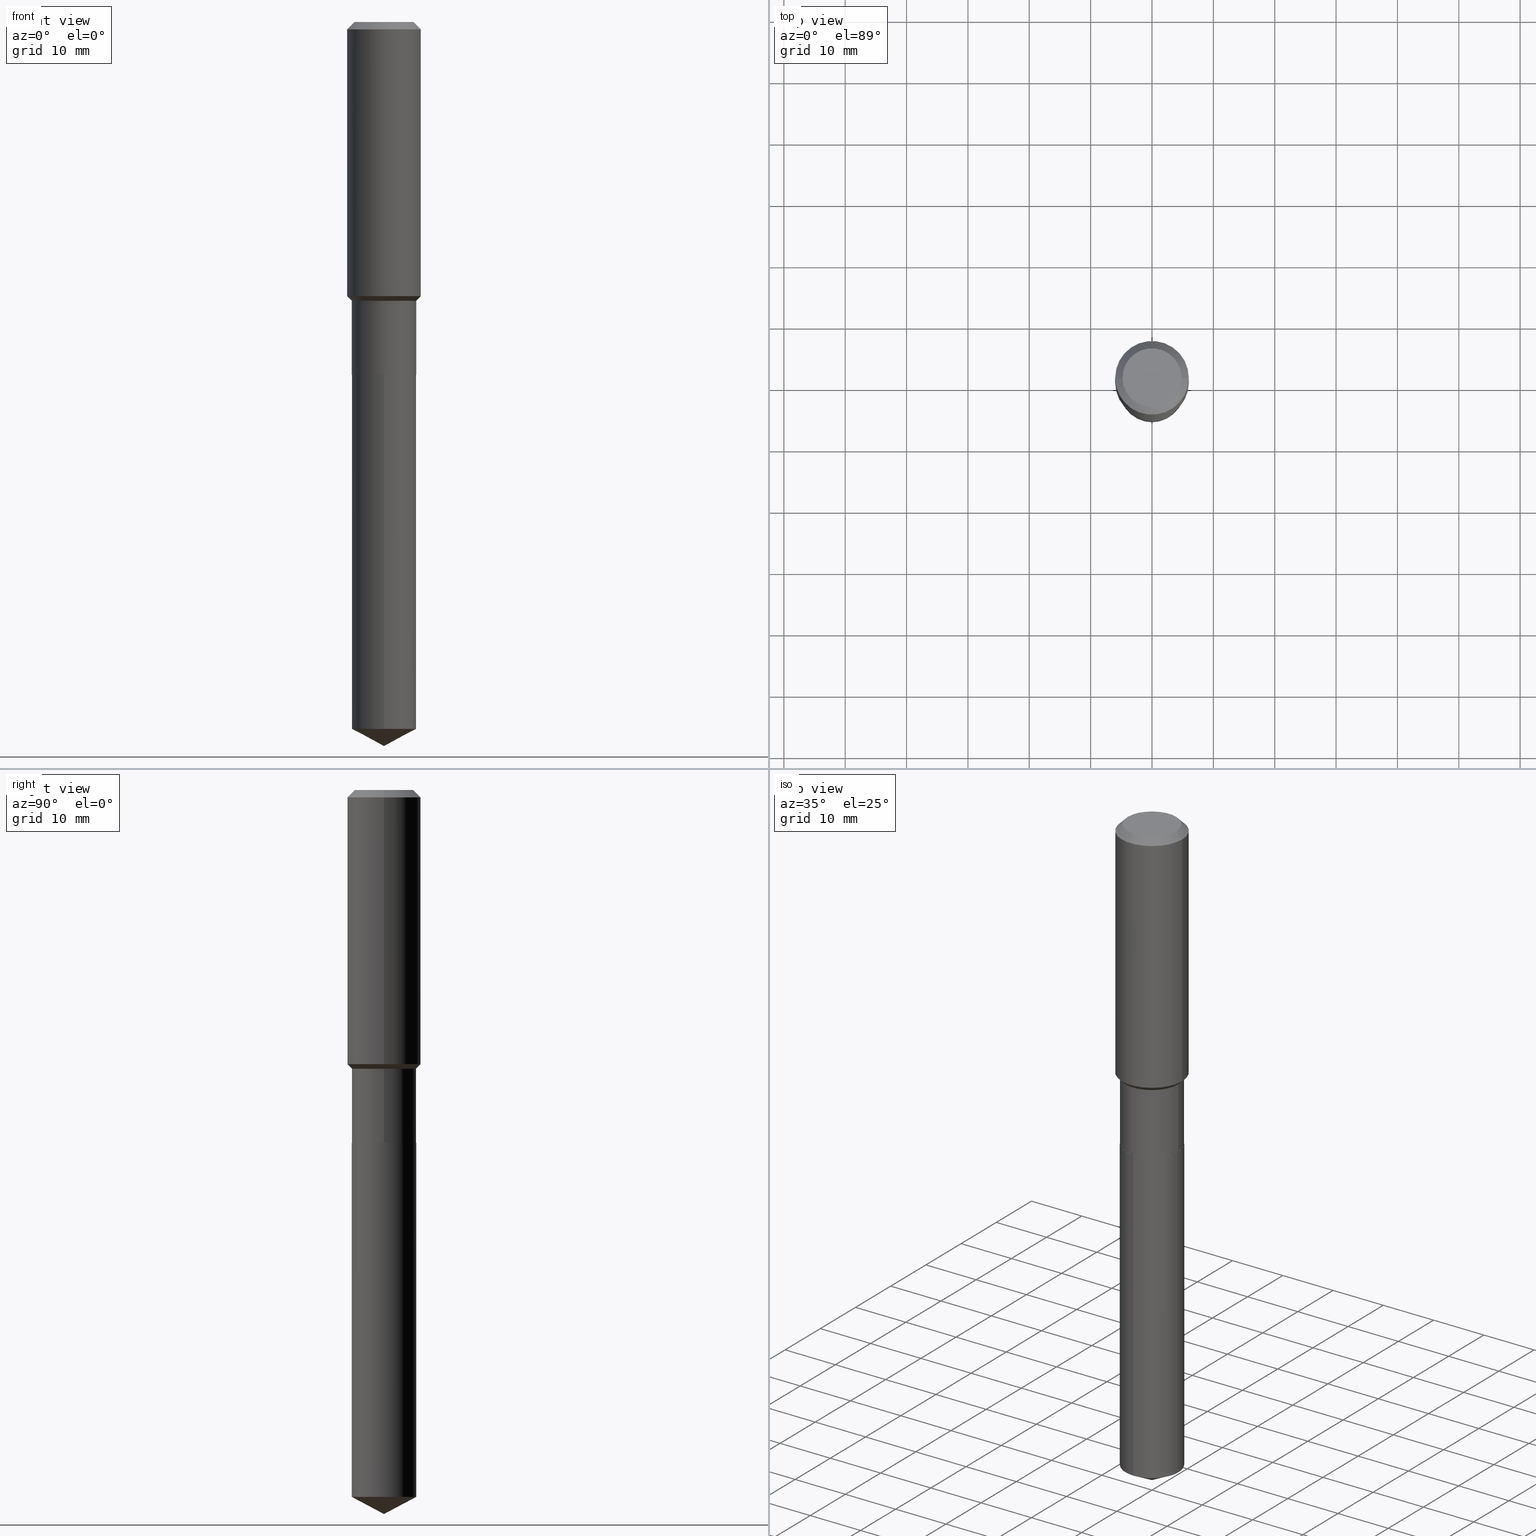
[diagram: canonical four-view strip — front | top / right | iso, engineering-drawing reading convention]
A machine part, canonical four-view strip (front | top / right | iso — engineering-drawing reading convention). The complete STEP part file that produces these views, byte-faithful:
ISO-10303-21;
HEADER;
FILE_DESCRIPTION (( 'STEP AP203' ),
    '1' );
FILE_NAME ('65075.STEP',
    '2024-04-24T20:27:13',
    ( '' ),
    ( '' ),
    'SwSTEP 2.0',
    'SolidWorks 2023',
    '' );
FILE_SCHEMA (( 'CONFIG_CONTROL_DESIGN' ));
ENDSEC;

DATA;
#1 = ORIENTED_EDGE ( 'NONE', *, *, #149, .T. ) ;
#2 = EDGE_CURVE ( 'NONE', #283, #4, #235, .T. ) ;
#3 = DIRECTION ( 'NONE',  ( -6.982962677686265133E-15, -1.000000000000000000, 2.643297526525653668E-15 ) ) ;
#4 = VERTEX_POINT ( 'NONE', #154 ) ;
#5 = CIRCLE ( 'NONE', #100, 0.2067000000000000226 ) ;
#6 = PRODUCT_DEFINITION_SHAPE ( 'NONE', 'NONE',  #94 ) ;
#7 = DIRECTION ( 'NONE',  ( 1.000000000000000000, -6.982962677686266711E-15, 0.000000000000000000 ) ) ;
#8 = CARTESIAN_POINT ( 'NONE',  ( 4.373476412981496355E-29, -6.244165226387079301E-15, -1.788399999999999324 ) ) ;
#9 = DIRECTION ( 'NONE',  ( 1.000000000000000000, -6.982962677686264344E-15, 0.000000000000000000 ) ) ;
#10 = ORIENTED_EDGE ( 'NONE', *, *, #343, .F. ) ;
#11 = CIRCLE ( 'NONE', #295, 0.2362000000000002153 ) ;
#12 = DIRECTION ( 'NONE',  ( -1.000000000000000000, 6.982962677686266711E-15, 0.000000000000000000 ) ) ;
#13 = LINE ( 'NONE', #471, #84 ) ;
#14 = CARTESIAN_POINT ( 'NONE',  ( 0.2361999999999999933, -1.814313362916447440E-15, -0.04724000000000028177 ) ) ;
#15 = LINE ( 'NONE', #355, #316 ) ;
#16 = DIRECTION ( 'NONE',  ( -6.982962677686265133E-15, -1.000000000000000000, 2.643297526525653668E-15 ) ) ;
#17 = AXIS2_PLACEMENT_3D ( 'NONE', #140, #450, #406 ) ;
#18 = FACE_OUTER_BOUND ( 'NONE', #248, .T. ) ;
#19 = DIRECTION ( 'NONE',  ( 1.000000000000000000, -6.982962677686266711E-15, 4.876176775795935793E-29 ) ) ;
#20 = CARTESIAN_POINT ( 'NONE',  ( 1.155239464041865506E-30, -1.649375784469511859E-16, -0.04724000000000028177 ) ) ;
#21 = ORIENTED_EDGE ( 'NONE', *, *, #319, .F. ) ;
#22 = CARTESIAN_POINT ( 'NONE',  ( 1.468691834816237291E-15, 0.2066999999999841187, -4.535795660475574032 ) ) ;
#23 = ORIENTED_EDGE ( 'NONE', *, *, #383, .F. ) ;
#24 = CONICAL_SURFACE ( 'NONE', #366, 0.2361999999999999933, 0.7853981633974452814 ) ;
#25 = AXIS2_PLACEMENT_3D ( 'NONE', #367, #212, #375 ) ;
#26 = DIRECTION ( 'NONE',  ( -2.445496147551325401E-29, 3.491442184450589334E-15, 1.000000000000000000 ) ) ;
#27 = EDGE_LOOP ( 'NONE', ( #209, #400, #486, #407 ) ) ;
#28 = EDGE_LOOP ( 'NONE', ( #123, #368 ) ) ;
#29 = LINE ( 'NONE', #329, #152 ) ;
#30 = PERSON_AND_ORGANIZATION ( #446, #237 ) ;
#31 = PERSON_AND_ORGANIZATION ( #446, #237 ) ;
#32 = ORIENTED_EDGE ( 'NONE', *, *, #480, .T. ) ;
#33 = CIRCLE ( 'NONE', #284, 0.2067000000000000226 ) ;
#34 = APPROVAL_PERSON_ORGANIZATION ( #67, #466, #441 ) ;
#35 = CIRCLE ( 'NONE', #182, 0.2062000000000000222 ) ;
#36 = ADVANCED_FACE ( 'NONE', ( #163 ), #132, .T. ) ;
#37 =( NAMED_UNIT ( * ) PLANE_ANGLE_UNIT ( ) SI_UNIT ( $, .RADIAN. ) );
#38 = PERSON_AND_ORGANIZATION_ROLE ( 'design_supplier' ) ;
#39 = CIRCLE ( 'NONE', #146, 0.2361999999999999933 ) ;
#40 = EDGE_CURVE ( 'NONE', #103, #72, #191, .T. ) ;
#41 = DIRECTION ( 'NONE',  ( -2.445468806185136877E-29, 3.491481338843145188E-15, 1.000000000000000000 ) ) ;
#42 = CARTESIAN_POINT ( 'NONE',  ( 4.373476412981496355E-29, -6.244165226387079301E-15, -1.788399999999999324 ) ) ;
#43 = AXIS2_PLACEMENT_3D ( 'NONE', #482, #314, #432 ) ;
#44 = EDGE_LOOP ( 'NONE', ( #106, #341, #242, #457 ) ) ;
#45 = AXIS2_PLACEMENT_3D ( 'NONE', #190, #334, #9 ) ;
#46 = DIRECTION ( 'NONE',  ( -2.445468806185136877E-29, 3.491481338843145188E-15, 1.000000000000000000 ) ) ;
#47 = DIRECTION ( 'NONE',  ( 1.000000000000000000, -6.982962677686268288E-15, 0.000000000000000000 ) ) ;
#48 = VERTEX_POINT ( 'NONE', #181 ) ;
#49 = DIRECTION ( 'NONE',  ( 0.7071067811866199593, -2.468850131083015945E-15, 0.7071067811864750752 ) ) ;
#50 = CARTESIAN_POINT ( 'NONE',  ( 0.1889600000000000168, -1.540873453589747738E-15, 3.855188123725863225E-18 ) ) ;
#51 = FACE_OUTER_BOUND ( 'NONE', #490, .T. ) ;
#52 = CARTESIAN_POINT ( 'NONE',  ( -0.2062000000000000222, -6.436227106561674597E-15, -2.263799999999999812 ) ) ;
#53 = AXIS2_PLACEMENT_3D ( 'NONE', #430, #160, #315 ) ;
#54 = ORIENTED_EDGE ( 'NONE', *, *, #2, .F. ) ;
#55 = AXIS2_PLACEMENT_3D ( 'NONE', #387, #151, #267 ) ;
#56 = DIRECTION ( 'NONE',  ( -2.445496147551325401E-29, 3.491442184450589334E-15, 1.000000000000000000 ) ) ;
#57 = VERTEX_POINT ( 'NONE', #50 ) ;
#58 = CARTESIAN_POINT ( 'NONE',  ( 5.534829549038819808E-29, -7.902269714203691232E-15, -2.263300000000000090 ) ) ;
#59 = ORIENTED_EDGE ( 'NONE', *, *, #480, .F. ) ;
#60 = ADVANCED_FACE ( 'NONE', ( #122 ), #312, .F. ) ;
#61 = ADVANCED_FACE ( 'NONE', ( #437 ), #467, .T. ) ;
#62 = ADVANCED_FACE ( 'NONE', ( #229 ), #415, .T. ) ;
#63 = FACE_OUTER_BOUND ( 'NONE', #476, .T. ) ;
#64 = EDGE_LOOP ( 'NONE', ( #374, #76 ) ) ;
#65 = AXIS2_PLACEMENT_3D ( 'NONE', #167, #185, #353 ) ;
#66 = PERSON_AND_ORGANIZATION_ROLE ( 'creator' ) ;
#67 = PERSON_AND_ORGANIZATION ( #446, #237 ) ;
#68 = CARTESIAN_POINT ( 'NONE',  ( -9.427742298522546243E-47, 1.346031739168365344E-32, 3.855188123715862256E-18 ) ) ;
#69 = EDGE_LOOP ( 'NONE', ( #96, #125, #448, #102 ) ) ;
#70 = ADVANCED_FACE ( 'NONE', ( #361 ), #92, .T. ) ;
#71 = APPROVAL_ROLE ( '' ) ;
#72 = VERTEX_POINT ( 'NONE', #397 ) ;
#73 = PERSON_AND_ORGANIZATION ( #446, #237 ) ;
#74 = PERSON_AND_ORGANIZATION ( #446, #237 ) ;
#75 = CIRCLE ( 'NONE', #256, 0.2361999999999999933 ) ;
#76 = ORIENTED_EDGE ( 'NONE', *, *, #311, .F. ) ;
#77 = LOCAL_TIME ( 16, 27, 13.00000000000000000, #204 ) ;
#78 = APPLICATION_CONTEXT ( 'configuration controlled 3d designs of mechanical parts and assemblies' ) ;
#79 = ORIENTED_EDGE ( 'NONE', *, *, #321, .F. ) ;
#80 = ADVANCED_FACE ( 'NONE', ( #269 ), #279, .T. ) ;
#81 = DIMENSIONAL_EXPONENTS ( 1.000000000000000000, 0.000000000000000000, 0.000000000000000000, 0.000000000000000000, 0.000000000000000000, 0.000000000000000000, 0.000000000000000000 ) ;
#82 = DIRECTION ( 'NONE',  ( 1.000000000000000000, -6.982962677686264344E-15, 0.000000000000000000 ) ) ;
#83 = AXIS2_PLACEMENT_3D ( 'NONE', #189, #194, #472 ) ;
#84 = VECTOR ( 'NONE', #278, 39.37007874015748143 ) ;
#85 = EDGE_CURVE ( 'NONE', #187, #97, #35, .T. ) ;
#86 = VERTEX_POINT ( 'NONE', #282 ) ;
#87 = DIRECTION ( 'NONE',  ( -2.445496147551325401E-29, 3.491442184450589334E-15, 1.000000000000000000 ) ) ;
#88 = CARTESIAN_POINT ( 'NONE',  ( 1.136104253817811671E-28, -1.622019295630210333E-14, -4.645699999999999719 ) ) ;
#89 = DIRECTION ( 'NONE',  ( 2.445468806185136597E-29, -3.491481338843145583E-15, -1.000000000000000000 ) ) ;
#90 = AXIS2_PLACEMENT_3D ( 'NONE', #8, #302, #82 ) ;
#91 = DIRECTION ( 'NONE',  ( 1.000000000000000000, -6.982962677686268288E-15, 0.000000000000000000 ) ) ;
#92 = CYLINDRICAL_SURFACE ( 'NONE', #119, 0.2066999999999999671 ) ;
#93 = LINE ( 'NONE', #369, #344 ) ;
#94 = PRODUCT_DEFINITION ( 'UNKNOWN', '', #214, #120 ) ;
#95 = DIRECTION ( 'NONE',  ( -2.445468806185136597E-29, 3.491481338843145583E-15, 1.000000000000000000 ) ) ;
#96 = ORIENTED_EDGE ( 'NONE', *, *, #434, .T. ) ;
#97 = VERTEX_POINT ( 'NONE', #52 ) ;
#98 = AXIS2_PLACEMENT_3D ( 'NONE', #201, #131, #485 ) ;
#99 = ORIENTED_EDGE ( 'NONE', *, *, #222, .T. ) ;
#100 = AXIS2_PLACEMENT_3D ( 'NONE', #249, #198, #299 ) ;
#101 = DIRECTION ( 'NONE',  ( -1.000000000000000000, 6.982962677686266711E-15, 0.000000000000000000 ) ) ;
#102 = ORIENTED_EDGE ( 'NONE', *, *, #489, .F. ) ;
#103 = VERTEX_POINT ( 'NONE', #322 ) ;
#104 = DIRECTION ( 'NONE',  ( -2.445468806185136877E-29, 3.491481338843145188E-15, 1.000000000000000000 ) ) ;
#105 = MANIFOLD_SOLID_BREP ( 'Body-Move/Copy2[2]', #425 ) ;
#106 = ORIENTED_EDGE ( 'NONE', *, *, #85, .T. ) ;
#107 = PERSON_AND_ORGANIZATION ( #446, #237 ) ;
#108 = PERSON_AND_ORGANIZATION_ROLE ( 'design_owner' ) ;
#109 = LINE ( 'NONE', #244, #473 ) ;
#110 = DIRECTION ( 'NONE',  ( -6.982962677686265133E-15, -1.000000000000000000, 3.541896320645539569E-15 ) ) ;
#111 = ORIENTED_EDGE ( 'NONE', *, *, #222, .F. ) ;
#112 = AXIS2_PLACEMENT_3D ( 'NONE', #129, #155, #281 ) ;
#113 = ORIENTED_EDGE ( 'NONE', *, *, #343, .T. ) ;
#114 = DIRECTION ( 'NONE',  ( 1.000000000000000000, -6.982962677686266711E-15, 0.000000000000000000 ) ) ;
#115 = CONICAL_SURFACE ( 'NONE', #483, 74.04434902938398011, 1.082104136236488934 ) ;
#116 = ADVANCED_FACE ( 'NONE', ( #428 ), #174, .T. ) ;
#117 = MECHANICAL_CONTEXT ( 'NONE', #78, 'mechanical' ) ;
#118 = ADVANCED_FACE ( 'NONE', ( #288 ), #115, .T. ) ;
#119 = AXIS2_PLACEMENT_3D ( 'NONE', #391, #234, #19 ) ;
#120 = DESIGN_CONTEXT ( 'detailed design', #162, 'design' ) ;
#121 = AXIS2_PLACEMENT_3D ( 'NONE', #318, #277, #91 ) ;
#122 = FACE_OUTER_BOUND ( 'NONE', #64, .T. ) ;
#123 = ORIENTED_EDGE ( 'NONE', *, *, #383, .T. ) ;
#124 = DIRECTION ( 'NONE',  ( 0.7071067811865453523, -7.319954787623248157E-15, -0.7071067811865496822 ) ) ;
#125 = ORIENTED_EDGE ( 'NONE', *, *, #364, .T. ) ;
#126 = LINE ( 'NONE', #232, #325 ) ;
#127 = APPROVAL ( #330, 'UNSPECIFIED' ) ;
#128 = CARTESIAN_POINT ( 'NONE',  ( 1.155239464041865506E-30, -1.649375784469511859E-16, -0.04724000000000028177 ) ) ;
#129 = CARTESIAN_POINT ( 'NONE',  ( 5.536052283441911489E-29, -7.904015454873111947E-15, -2.263799999999999812 ) ) ;
#130 = DIRECTION ( 'NONE',  ( 1.000000000000000000, -6.982962677686268288E-15, 0.000000000000000000 ) ) ;
#131 = DIRECTION ( 'NONE',  ( -2.445496147551325401E-29, 3.491442184450589334E-15, 1.000000000000000000 ) ) ;
#132 = CONICAL_SURFACE ( 'NONE', #121, 0.2062000000000000222, 0.7853981633975507526 ) ;
#133 = ORIENTED_EDGE ( 'NONE', *, *, #40, .T. ) ;
#134 = LOCAL_TIME ( 16, 27, 13.00000000000000000, #303 ) ;
#135 = APPROVAL_STATUS ( 'not_yet_approved' ) ;
#136 = DIRECTION ( 'NONE',  ( -1.000000000000000000, 6.982962677686265922E-15, -4.876176775795935793E-29 ) ) ;
#137 = ORIENTED_EDGE ( 'NONE', *, *, #434, .F. ) ;
#138 = DATE_AND_TIME ( #347, #134 ) ;
#139 = AXIS2_PLACEMENT_3D ( 'NONE', #58, #331, #456 ) ;
#140 = CARTESIAN_POINT ( 'NONE',  ( 5.536052283441911489E-29, -7.904015454873111947E-15, -2.263799999999999812 ) ) ;
#141 = PRODUCT_RELATED_PRODUCT_CATEGORY ( 'detail', '', ( #219 ) ) ;
#142 = ORIENTED_EDGE ( 'NONE', *, *, #453, .F. ) ;
#143 = EDGE_CURVE ( 'NONE', #481, #272, #308, .T. ) ;
#144 = DIRECTION ( 'NONE',  ( -6.165590087286842340E-15, -0.8829475928589273215, 0.4694715627858898066 ) ) ;
#145 = AXIS2_PLACEMENT_3D ( 'NONE', #238, #95, #390 ) ;
#146 = AXIS2_PLACEMENT_3D ( 'NONE', #465, #345, #7 ) ;
#147 = CARTESIAN_POINT ( 'NONE',  ( 4.301335083199035081E-29, -6.141166526891206646E-15, -1.758899999999999464 ) ) ;
#148 = LINE ( 'NONE', #215, #455 ) ;
#149 = EDGE_CURVE ( 'NONE', #57, #402, #379, .T. ) ;
#150 = CARTESIAN_POINT ( 'NONE',  ( -0.2362000000000002153, -4.462864585025847885E-15, -1.758899999999999464 ) ) ;
#151 = DIRECTION ( 'NONE',  ( 0.000000000000000000, 0.000000000000000000, 1.000000000000000000 ) ) ;
#152 = VECTOR ( 'NONE', #478, 39.37007874015748143 ) ;
#153 = CC_DESIGN_APPROVAL ( #466, ( #94 ) ) ;
#154 = CARTESIAN_POINT ( 'NONE',  ( -1.443378385477640183E-15, -0.2067000000000157878, -4.535795660475572255 ) ) ;
#155 = DIRECTION ( 'NONE',  ( -2.445496147551325401E-29, 3.491442184450589334E-15, 1.000000000000000000 ) ) ;
#156 = ORIENTED_EDGE ( 'NONE', *, *, #453, .T. ) ;
#157 = DIRECTION ( 'NONE',  ( -0.7071067811866199593, 7.493145998870616062E-15, 0.7071067811864750752 ) ) ;
#158 = EDGE_CURVE ( 'NONE', #402, #363, #29, .T. ) ;
#159 = ADVANCED_FACE ( 'NONE', ( #176 ), #440, .T. ) ;
#160 = DIRECTION ( 'NONE',  ( -2.438088387897960049E-29, 3.491481338843145188E-15, 1.000000000000000000 ) ) ;
#161 = CARTESIAN_POINT ( 'NONE',  ( 5.536052283441911489E-29, -7.904015454873111947E-15, -2.263799999999999812 ) ) ;
#162 = APPLICATION_CONTEXT ( 'configuration controlled 3d designs of mechanical parts and assemblies' ) ;
#163 = FACE_OUTER_BOUND ( 'NONE', #44, .T. ) ;
#164 = CARTESIAN_POINT ( 'NONE',  ( -0.2062000000000000222, -6.438876333735785798E-15, -2.263799999999999812 ) ) ;
#165 = EDGE_LOOP ( 'NONE', ( #10, #32, #54 ) ) ;
#166 = EDGE_CURVE ( 'NONE', #171, #365, #11, .T. ) ;
#167 = CARTESIAN_POINT ( 'NONE',  ( 4.373476412981496355E-29, -6.244165226387079301E-15, -1.788399999999999324 ) ) ;
#168 = EDGE_CURVE ( 'NONE', #4, #283, #33, .T. ) ;
#169 = AXIS2_PLACEMENT_3D ( 'NONE', #468, #87, #16 ) ;
#170 = CARTESIAN_POINT ( 'NONE',  ( -4.713871149261273121E-47, 6.730158695841826722E-33, 1.927594061857931128E-18 ) ) ;
#171 = VERTEX_POINT ( 'NONE', #150 ) ;
#172 = CYLINDRICAL_SURFACE ( 'NONE', #193, 0.2067000000000000226 ) ;
#173 = AXIS2_PLACEMENT_3D ( 'NONE', #435, #231, #394 ) ;
#174 = CONICAL_SURFACE ( 'NONE', #98, 74.04434902938398011, 1.082104136236488934 ) ;
#175 = COORDINATED_UNIVERSAL_TIME_OFFSET ( 5, 0, .BEHIND. ) ;
#176 = FACE_OUTER_BOUND ( 'NONE', #275, .T. ) ;
#177 = CIRCLE ( 'NONE', #139, 0.2067000000000000226 ) ;
#178 = APPROVAL_ROLE ( '' ) ;
#179 = LINE ( 'NONE', #304, #213 ) ;
#180 = CARTESIAN_POINT ( 'NONE',  ( 0.000000000000000000, 0.000000000000000000, 0.000000000000000000 ) ) ;
#181 = CARTESIAN_POINT ( 'NONE',  ( -0.2067000000000000226, -5.604525635479257035E-15, -2.263300000000000090 ) ) ;
#182 = AXIS2_PLACEMENT_3D ( 'NONE', #350, #475, #130 ) ;
#183 = CC_DESIGN_APPROVAL ( #127, ( #203 ) ) ;
#184 = DIRECTION ( 'NONE',  ( 1.000000000000000000, -6.982962677686264344E-15, 0.000000000000000000 ) ) ;
#185 = DIRECTION ( 'NONE',  ( -2.445468806185136597E-29, 3.491481338843145583E-15, 1.000000000000000000 ) ) ;
#186 = EDGE_CURVE ( 'NONE', #283, #481, #179, .T. ) ;
#187 = VERTEX_POINT ( 'NONE', #362 ) ;
#188 = DATE_AND_TIME ( #210, #77 ) ;
#189 = CARTESIAN_POINT ( 'NONE',  ( 5.536052283441911489E-29, -7.904015454873111947E-15, -2.263799999999999812 ) ) ;
#190 = CARTESIAN_POINT ( 'NONE',  ( 4.373476412981496355E-29, -6.244165226387079301E-15, -1.788399999999999324 ) ) ;
#191 = CIRCLE ( 'NONE', #266, 0.2066999999999999393 ) ;
#192 = PLANE ( 'NONE',  #17 ) ;
#193 = AXIS2_PLACEMENT_3D ( 'NONE', #241, #26, #401 ) ;
#194 = DIRECTION ( 'NONE',  ( -2.445468806185136597E-29, 3.491481338843145583E-15, 1.000000000000000000 ) ) ;
#195 = VERTEX_POINT ( 'NONE', #274 ) ;
#196 = ORIENTED_EDGE ( 'NONE', *, *, #311, .T. ) ;
#197 = DIRECTION ( 'NONE',  ( 1.000000000000000000, -6.982962677686266711E-15, 0.000000000000000000 ) ) ;
#198 = DIRECTION ( 'NONE',  ( -2.445468806185136597E-29, 3.491481338843145583E-15, 1.000000000000000000 ) ) ;
#199 = ORIENTED_EDGE ( 'NONE', *, *, #336, .T. ) ;
#200 = PLANE ( 'NONE',  #296 ) ;
#201 = CARTESIAN_POINT ( 'NONE',  ( -8.491839633055304028E-28, 1.212380721245111700E-13, 34.72437874015748349 ) ) ;
#202 = UNCERTAINTY_MEASURE_WITH_UNIT (LENGTH_MEASURE( 1.000000000000000082E-05 ), #424, 'distance_accuracy_value', 'NONE');
#203 = SECURITY_CLASSIFICATION ( '', '', #449 ) ;
#204 = COORDINATED_UNIVERSAL_TIME_OFFSET ( 5, 0, .BEHIND. ) ;
#205 = CC_DESIGN_DATE_AND_TIME_ASSIGNMENT ( #188, #403, ( #203 ) ) ;
#206 = FACE_OUTER_BOUND ( 'NONE', #419, .T. ) ;
#207 = DIRECTION ( 'NONE',  ( -2.445468806185136597E-29, 3.491481338843145583E-15, 1.000000000000000000 ) ) ;
#208 = PERSON_AND_ORGANIZATION ( #446, #237 ) ;
#209 = ORIENTED_EDGE ( 'NONE', *, *, #364, .F. ) ;
#210 = CALENDAR_DATE ( 2024, 24, 4 ) ;
#211 = CALENDAR_DATE ( 2024, 24, 4 ) ;
#212 = DIRECTION ( 'NONE',  ( -2.445468806185136597E-29, 3.491481338843145583E-15, 1.000000000000000000 ) ) ;
#213 = VECTOR ( 'NONE', #56, 39.37007874015748143 ) ;
#214 = PRODUCT_DEFINITION_FORMATION_WITH_SPECIFIED_SOURCE ( 'ANY', '', #219, .NOT_KNOWN. ) ;
#215 = CARTESIAN_POINT ( 'NONE',  ( 0.2362000000000001043, -1.649375784469496920E-15, 1.151752954443000508E-29 ) ) ;
#216 = ORIENTED_EDGE ( 'NONE', *, *, #427, .F. ) ;
#217 = DIRECTION ( 'NONE',  ( -2.445468806185136597E-29, 3.491481338843145583E-15, 1.000000000000000000 ) ) ;
#218 = AXIS2_PLACEMENT_3D ( 'NONE', #180, #470, #348 ) ;
#219 = PRODUCT ( '65075', '65075', '', ( #117 ) ) ;
#220 = EDGE_CURVE ( 'NONE', #409, #363, #75, .T. ) ;
#221 = ORIENTED_EDGE ( 'NONE', *, *, #384, .T. ) ;
#222 = EDGE_CURVE ( 'NONE', #402, #57, #268, .T. ) ;
#223 = DIRECTION ( 'NONE',  ( -2.445468806185136597E-29, 3.491481338843145583E-15, 1.000000000000000000 ) ) ;
#224 = LINE ( 'NONE', #388, #360 ) ;
#225 = CARTESIAN_POINT ( 'NONE',  ( -1.443378385477695995E-15, -0.2067000000000079052, -2.263799999999998924 ) ) ;
#226 = CIRCLE ( 'NONE', #431, 0.2062000000000000222 ) ;
#227 = CIRCLE ( 'NONE', #112, 0.2067000000000000226 ) ;
#228 = EDGE_LOOP ( 'NONE', ( #286, #196, #380, #216 ) ) ;
#229 = FACE_OUTER_BOUND ( 'NONE', #247, .T. ) ;
#230 = CARTESIAN_POINT ( 'NONE',  ( 1.155239464041865506E-30, -1.649375784469511859E-16, -0.04724000000000028177 ) ) ;
#231 = DIRECTION ( 'NONE',  ( -2.445496147551325401E-29, 3.491442184450589334E-15, 1.000000000000000000 ) ) ;
#232 = CARTESIAN_POINT ( 'NONE',  ( 0.2062000000000000222, -9.343902359012020155E-15, -2.263799999999999812 ) ) ;
#233 = ORIENTED_EDGE ( 'NONE', *, *, #168, .T. ) ;
#234 = DIRECTION ( 'NONE',  ( -2.445468806185136597E-29, 3.491481338843145583E-15, 1.000000000000000000 ) ) ;
#235 = CIRCLE ( 'NONE', #169, 0.2067000000000000226 ) ;
#236 = CARTESIAN_POINT ( 'NONE',  ( 0.2361999999999999933, -1.785387205520586782E-15, -0.04724000000000028177 ) ) ;
#237 = ORGANIZATION ( 'UNSPECIFIED', 'UNSPECIFIED', '' ) ;
#238 = CARTESIAN_POINT ( 'NONE',  ( 0.000000000000000000, 0.000000000000000000, 0.000000000000000000 ) ) ;
#239 = EDGE_LOOP ( 'NONE', ( #252, #313, #290, #410 ) ) ;
#240 = ORIENTED_EDGE ( 'NONE', *, *, #321, .T. ) ;
#241 = CARTESIAN_POINT ( 'NONE',  ( 5.536052283441911489E-29, -7.904015454873111947E-15, -2.263799999999999812 ) ) ;
#242 = ORIENTED_EDGE ( 'NONE', *, *, #423, .F. ) ;
#243 = CC_DESIGN_PERSON_AND_ORGANIZATION_ASSIGNMENT ( #30, #38, ( #214 ) ) ;
#244 = CARTESIAN_POINT ( 'NONE',  ( 1.136091766190963518E-28, -1.622037023172983992E-14, -4.645699999999999719 ) ) ;
#245 = DIRECTION ( 'NONE',  ( -2.445496147551325401E-29, 3.491442184450589334E-15, 1.000000000000000000 ) ) ;
#246 =( GEOMETRIC_REPRESENTATION_CONTEXT ( 3 ) GLOBAL_UNCERTAINTY_ASSIGNED_CONTEXT ( ( #202 ) ) GLOBAL_UNIT_ASSIGNED_CONTEXT ( ( #424, #37, #381 ) ) REPRESENTATION_CONTEXT ( 'NONE', 'WORKASPACE' ) );
#247 = EDGE_LOOP ( 'NONE', ( #323, #221, #421, #439 ) ) ;
#248 = EDGE_LOOP ( 'NONE', ( #258, #111, #292, #199 ) ) ;
#249 = CARTESIAN_POINT ( 'NONE',  ( 5.534829549038819808E-29, -7.902269714203691232E-15, -2.263300000000000090 ) ) ;
#250 = PERSON_AND_ORGANIZATION_ROLE ( 'classification_officer' ) ;
#251 = APPLICATION_PROTOCOL_DEFINITION ( 'international standard', 'config_control_design', 1994, #162 ) ;
#252 = ORIENTED_EDGE ( 'NONE', *, *, #186, .F. ) ;
#253 = CYLINDRICAL_SURFACE ( 'NONE', #25, 0.2066999999999999671 ) ;
#254 = ORIENTED_EDGE ( 'NONE', *, *, #327, .F. ) ;
#255 = EDGE_CURVE ( 'NONE', #187, #86, #126, .T. ) ;
#256 = AXIS2_PLACEMENT_3D ( 'NONE', #230, #392, #197 ) ;
#257 = CC_DESIGN_SECURITY_CLASSIFICATION ( #203, ( #214 ) ) ;
#258 = ORIENTED_EDGE ( 'NONE', *, *, #384, .F. ) ;
#259 =( LENGTH_UNIT ( ) NAMED_UNIT ( * ) SI_UNIT ( $, .METRE. ) );
#260 = CARTESIAN_POINT ( 'NONE',  ( -0.2362000000000001043, 1.678301941865357380E-15, -1.161852468318209317E-29 ) ) ;
#261 = EDGE_CURVE ( 'NONE', #97, #48, #359, .T. ) ;
#262 = CARTESIAN_POINT ( 'NONE',  ( 1.109220891838825570E-28, -1.583655694674620916E-14, -4.535795660475573143 ) ) ;
#263 = LENGTH_MEASURE_WITH_UNIT ( LENGTH_MEASURE( 0.02539999999999999897 ), #259 );
#264 = MANIFOLD_SOLID_BREP ( 'Body-Move/Copy2[1]', #306 ) ;
#265 = SHAPE_DEFINITION_REPRESENTATION ( #6, #393 ) ;
#266 = AXIS2_PLACEMENT_3D ( 'NONE', #42, #223, #184 ) ;
#267 = DIRECTION ( 'NONE',  ( 1.000000000000000000, 0.000000000000000000, 0.000000000000000000 ) ) ;
#268 = CIRCLE ( 'NONE', #43, 0.1889600000000000168 ) ;
#269 = FACE_OUTER_BOUND ( 'NONE', #239, .T. ) ;
#270 = CYLINDRICAL_SURFACE ( 'NONE', #218, 0.2362000000000001043 ) ;
#271 = ADVANCED_FACE ( 'NONE', ( #18 ), #24, .T. ) ;
#272 = VERTEX_POINT ( 'NONE', #225 ) ;
#273 = FACE_OUTER_BOUND ( 'NONE', #27, .T. ) ;
#274 = CARTESIAN_POINT ( 'NONE',  ( 1.136104145267919125E-28, -1.622019295630210018E-14, -4.645699999999999719 ) ) ;
#275 = EDGE_LOOP ( 'NONE', ( #133, #240, #137, #454 ) ) ;
#276 = CARTESIAN_POINT ( 'NONE',  ( -0.1889600000000000168, 1.401969416799070942E-15, 3.855188123706346622E-18 ) ) ;
#277 = DIRECTION ( 'NONE',  ( -2.445468806185136597E-29, 3.491481338843145583E-15, 1.000000000000000000 ) ) ;
#278 = DIRECTION ( 'NONE',  ( -0.7071067811865500152, 7.493145998870363626E-15, 0.7071067811865450192 ) ) ;
#279 = CYLINDRICAL_SURFACE ( 'NONE', #173, 0.2067000000000000226 ) ;
#280 = ADVANCED_FACE ( 'NONE', ( #320 ), #436, .T. ) ;
#281 = DIRECTION ( 'NONE',  ( -6.982962677686265133E-15, -1.000000000000000000, 3.964946289788480107E-15 ) ) ;
#282 = CARTESIAN_POINT ( 'NONE',  ( 0.2067000000000000226, -9.345648099681442448E-15, -2.263300000000000090 ) ) ;
#283 = VERTEX_POINT ( 'NONE', #22 ) ;
#284 = AXIS2_PLACEMENT_3D ( 'NONE', #262, #386, #3 ) ;
#285 = CC_DESIGN_APPROVAL ( #429, ( #214 ) ) ;
#286 = ORIENTED_EDGE ( 'NONE', *, *, #261, .F. ) ;
#287 = FACE_OUTER_BOUND ( 'NONE', #309, .T. ) ;
#288 = FACE_OUTER_BOUND ( 'NONE', #165, .T. ) ;
#289 = ORIENTED_EDGE ( 'NONE', *, *, #427, .T. ) ;
#290 = ORIENTED_EDGE ( 'NONE', *, *, #327, .T. ) ;
#291 = CARTESIAN_POINT ( 'NONE',  ( -8.491839633055304028E-28, 1.212380721245111700E-13, 34.72437874015748349 ) ) ;
#292 = ORIENTED_EDGE ( 'NONE', *, *, #158, .T. ) ;
#293 = DATE_AND_TIME ( #413, #442 ) ;
#294 = APPROVAL_DATE_TIME ( #404, #466 ) ;
#295 = AXIS2_PLACEMENT_3D ( 'NONE', #147, #217, #340 ) ;
#296 = AXIS2_PLACEMENT_3D ( 'NONE', #170, #487, #136 ) ;
#297 = DATE_TIME_ROLE ( 'creation_date' ) ;
#298 = APPROVAL_DATE_TIME ( #138, #127 ) ;
#299 = DIRECTION ( 'NONE',  ( 1.000000000000000000, -6.982962677686269866E-15, 0.000000000000000000 ) ) ;
#300 = CC_DESIGN_PERSON_AND_ORGANIZATION_ASSIGNMENT ( #107, #250, ( #203 ) ) ;
#301 = CARTESIAN_POINT ( 'NONE',  ( -0.2361999999999999933, -1.474750110803721400E-15, -0.04724000000000028177 ) ) ;
#302 = DIRECTION ( 'NONE',  ( -2.445468806185136597E-29, 3.491481338843145583E-15, 1.000000000000000000 ) ) ;
#303 = COORDINATED_UNIVERSAL_TIME_OFFSET ( 5, 0, .BEHIND. ) ;
#304 = CARTESIAN_POINT ( 'NONE',  ( 1.468691834816182268E-15, 0.2066999999999921123, -2.263800000000000701 ) ) ;
#305 = LINE ( 'NONE', #88, #462 ) ;
#306 = CLOSED_SHELL ( 'NONE', ( #469, #116, #118, #80, #416 ) ) ;
#307 = LOCAL_TIME ( 16, 27, 13.00000000000000000, #414 ) ;
#308 = CIRCLE ( 'NONE', #461, 0.2067000000000000226 ) ;
#309 = EDGE_LOOP ( 'NONE', ( #233, #444, #23, #254 ) ) ;
#310 = LINE ( 'NONE', #236, #484 ) ;
#311 = EDGE_CURVE ( 'NONE', #97, #187, #226, .T. ) ;
#312 = PLANE ( 'NONE',  #53 ) ;
#313 = ORIENTED_EDGE ( 'NONE', *, *, #2, .T. ) ;
#314 = DIRECTION ( 'NONE',  ( -2.445468806185136597E-29, 3.491481338843145583E-15, 1.000000000000000000 ) ) ;
#315 = DIRECTION ( 'NONE',  ( 1.000000000000000000, -6.982962677686265922E-15, 4.876176775795935793E-29 ) ) ;
#316 = VECTOR ( 'NONE', #317, 39.37007874015748143 ) ;
#317 = DIRECTION ( 'NONE',  ( 0.7071067811865500152, -2.468850131082282699E-15, 0.7071067811865450192 ) ) ;
#318 = CARTESIAN_POINT ( 'NONE',  ( 5.536052283441911489E-29, -7.904015454873111947E-15, -2.263799999999999812 ) ) ;
#319 = EDGE_CURVE ( 'NONE', #72, #103, #335, .T. ) ;
#320 = FACE_OUTER_BOUND ( 'NONE', #69, .T. ) ;
#321 = EDGE_CURVE ( 'NONE', #72, #171, #13, .T. ) ;
#322 = CARTESIAN_POINT ( 'NONE',  ( 0.2066999999999999393, -7.687543611864829727E-15, -1.788399999999999324 ) ) ;
#323 = ORIENTED_EDGE ( 'NONE', *, *, #149, .F. ) ;
#324 = ADVANCED_FACE ( 'NONE', ( #51 ), #332, .T. ) ;
#325 = VECTOR ( 'NONE', #49, 39.37007874015748143 ) ;
#326 = CARTESIAN_POINT ( 'NONE',  ( 0.2066999999999999671, -1.443378385477751018E-15, 1.007905739557019780E-29 ) ) ;
#327 = EDGE_CURVE ( 'NONE', #4, #272, #93, .T. ) ;
#328 = EDGE_LOOP ( 'NONE', ( #438, #289, #156, #21 ) ) ;
#329 = CARTESIAN_POINT ( 'NONE',  ( -0.2361999999999999933, 1.484438206022545019E-15, -0.04724000000000028177 ) ) ;
#330 = APPROVAL_STATUS ( 'not_yet_approved' ) ;
#331 = DIRECTION ( 'NONE',  ( -2.445468806185136597E-29, 3.491481338843145583E-15, 1.000000000000000000 ) ) ;
#332 = CONICAL_SURFACE ( 'NONE', #45, 0.2066999999999999393, 0.7853981633974518317 ) ;
#333 = CC_DESIGN_DATE_AND_TIME_ASSIGNMENT ( #293, #297, ( #94 ) ) ;
#334 = DIRECTION ( 'NONE',  ( -2.445468806185136597E-29, 3.491481338843145583E-15, 1.000000000000000000 ) ) ;
#335 = CIRCLE ( 'NONE', #65, 0.2066999999999999393 ) ;
#336 = EDGE_CURVE ( 'NONE', #363, #409, #39, .T. ) ;
#337 = ADVANCED_FACE ( 'NONE', ( #273 ), #270, .T. ) ;
#338 = ORIENTED_EDGE ( 'NONE', *, *, #166, .F. ) ;
#339 = DATE_AND_TIME ( #459, #433 ) ;
#340 = DIRECTION ( 'NONE',  ( 1.000000000000000000, -6.982962677686266711E-15, 0.000000000000000000 ) ) ;
#341 = ORIENTED_EDGE ( 'NONE', *, *, #261, .T. ) ;
#342 = CC_DESIGN_PERSON_AND_ORGANIZATION_ASSIGNMENT ( #73, #382, ( #214 ) ) ;
#343 = EDGE_CURVE ( 'NONE', #195, #283, #305, .T. ) ;
#344 = VECTOR ( 'NONE', #378, 39.37007874015748143 ) ;
#345 = DIRECTION ( 'NONE',  ( -2.445468806185136597E-29, 3.491481338843145583E-15, 1.000000000000000000 ) ) ;
#346 = CARTESIAN_POINT ( 'NONE',  ( 1.468691834816238474E-15, 0.2066999999999921123, -2.263800000000000701 ) ) ;
#347 = CALENDAR_DATE ( 2024, 24, 4 ) ;
#348 = DIRECTION ( 'NONE',  ( 1.000000000000000000, -6.982962677686266711E-15, 4.876176775795935793E-29 ) ) ;
#349 = APPLICATION_PROTOCOL_DEFINITION ( 'international standard', 'config_control_design', 1994, #78 ) ;
#350 = CARTESIAN_POINT ( 'NONE',  ( 5.536052283441911489E-29, -7.904015454873111947E-15, -2.263799999999999812 ) ) ;
#351 = APPROVAL_PERSON_ORGANIZATION ( #31, #127, #178 ) ;
#352 = DIRECTION ( 'NONE',  ( 2.445468806185136597E-29, -3.491481338843145583E-15, -1.000000000000000000 ) ) ;
#353 = DIRECTION ( 'NONE',  ( 1.000000000000000000, -6.982962677686264344E-15, 0.000000000000000000 ) ) ;
#354 = EDGE_CURVE ( 'NONE', #48, #72, #224, .T. ) ;
#355 = CARTESIAN_POINT ( 'NONE',  ( 0.2066999999999999393, -7.687543611864829727E-15, -1.788399999999999324 ) ) ;
#356 = EDGE_LOOP ( 'NONE', ( #59, #113, #372 ) ) ;
#357 = ORIENTED_EDGE ( 'NONE', *, *, #354, .T. ) ;
#358 = ORIENTED_EDGE ( 'NONE', *, *, #423, .T. ) ;
#359 = LINE ( 'NONE', #164, #389 ) ;
#360 = VECTOR ( 'NONE', #46, 39.37007874015748143 ) ;
#361 = FACE_OUTER_BOUND ( 'NONE', #328, .T. ) ;
#362 = CARTESIAN_POINT ( 'NONE',  ( 0.2062000000000000222, -9.343902359012020155E-15, -2.263799999999999812 ) ) ;
#363 = VERTEX_POINT ( 'NONE', #301 ) ;
#364 = EDGE_CURVE ( 'NONE', #171, #363, #464, .T. ) ;
#365 = VERTEX_POINT ( 'NONE', #474 ) ;
#366 = AXIS2_PLACEMENT_3D ( 'NONE', #20, #89, #101 ) ;
#367 = CARTESIAN_POINT ( 'NONE',  ( 0.000000000000000000, 0.000000000000000000, 0.000000000000000000 ) ) ;
#368 = ORIENTED_EDGE ( 'NONE', *, *, #143, .T. ) ;
#369 = CARTESIAN_POINT ( 'NONE',  ( -1.443378385477695995E-15, -0.2067000000000079052, -2.263799999999998924 ) ) ;
#370 = EDGE_CURVE ( 'NONE', #103, #365, #15, .T. ) ;
#371 = DIRECTION ( 'NONE',  ( 1.000000000000000000, -6.982962677686266711E-15, 4.876185090822587894E-29 ) ) ;
#372 = ORIENTED_EDGE ( 'NONE', *, *, #168, .F. ) ;
#373 = APPROVAL_DATE_TIME ( #339, #429 ) ;
#374 = ORIENTED_EDGE ( 'NONE', *, *, #85, .F. ) ;
#375 = DIRECTION ( 'NONE',  ( 1.000000000000000000, -6.982962677686266711E-15, 4.876176775795935793E-29 ) ) ;
#376 = AXIS2_PLACEMENT_3D ( 'NONE', #128, #352, #12 ) ;
#377 = CIRCLE ( 'NONE', #399, 0.2362000000000002153 ) ;
#378 = DIRECTION ( 'NONE',  ( -2.445496147551325401E-29, 3.491442184450589334E-15, 1.000000000000000000 ) ) ;
#379 = CIRCLE ( 'NONE', #443, 0.1889600000000000168 ) ;
#380 = ORIENTED_EDGE ( 'NONE', *, *, #255, .T. ) ;
#381 =( NAMED_UNIT ( * ) SI_UNIT ( $, .STERADIAN. ) SOLID_ANGLE_UNIT ( ) );
#382 = PERSON_AND_ORGANIZATION_ROLE ( 'creator' ) ;
#383 = EDGE_CURVE ( 'NONE', #272, #481, #227, .T. ) ;
#384 = EDGE_CURVE ( 'NONE', #57, #409, #310, .T. ) ;
#385 = VECTOR ( 'NONE', #104, 39.37007874015748143 ) ;
#386 = DIRECTION ( 'NONE',  ( -2.445496147551325401E-29, 3.491442184450589334E-15, 1.000000000000000000 ) ) ;
#387 = CARTESIAN_POINT ( 'NONE',  ( 0.000000000000000000, 0.000000000000000000, 0.000000000000000000 ) ) ;
#388 = CARTESIAN_POINT ( 'NONE',  ( -0.2066999999999999671, 1.468691834816126850E-15, -1.016743883155689005E-29 ) ) ;
#389 = VECTOR ( 'NONE', #157, 39.37007874015748143 ) ;
#390 = DIRECTION ( 'NONE',  ( 1.000000000000000000, -6.982962677686266711E-15, 4.876176775795935793E-29 ) ) ;
#391 = CARTESIAN_POINT ( 'NONE',  ( 0.000000000000000000, 0.000000000000000000, 0.000000000000000000 ) ) ;
#392 = DIRECTION ( 'NONE',  ( -2.445468806185136597E-29, 3.491481338843145583E-15, 1.000000000000000000 ) ) ;
#393 = ADVANCED_BREP_SHAPE_REPRESENTATION ( '65075', ( #264, #105, #55 ), #246 ) ;
#394 = DIRECTION ( 'NONE',  ( -6.982962677686265133E-15, -1.000000000000000000, 3.964946289788480107E-15 ) ) ;
#395 = DIRECTION ( 'NONE',  ( -2.445468806185136597E-29, 3.491481338843145583E-15, 1.000000000000000000 ) ) ;
#396 = FACE_OUTER_BOUND ( 'NONE', #28, .T. ) ;
#397 = CARTESIAN_POINT ( 'NONE',  ( -0.2066999999999999393, -5.604525635479257824E-15, -1.788399999999999324 ) ) ;
#398 = ORIENTED_EDGE ( 'NONE', *, *, #370, .T. ) ;
#399 = AXIS2_PLACEMENT_3D ( 'NONE', #458, #412, #114 ) ;
#400 = ORIENTED_EDGE ( 'NONE', *, *, #166, .T. ) ;
#401 = DIRECTION ( 'NONE',  ( -6.982962677686265133E-15, -1.000000000000000000, 3.964946289788480107E-15 ) ) ;
#402 = VERTEX_POINT ( 'NONE', #276 ) ;
#403 = DATE_TIME_ROLE ( 'classification_date' ) ;
#404 = DATE_AND_TIME ( #211, #307 ) ;
#405 = VECTOR ( 'NONE', #41, 39.37007874015748143 ) ;
#406 = DIRECTION ( 'NONE',  ( 6.982962677686265922E-15, 1.000000000000000000, -3.491442184450589334E-15 ) ) ;
#407 = ORIENTED_EDGE ( 'NONE', *, *, #336, .F. ) ;
#408 = DIRECTION ( 'NONE',  ( -6.982962677686265133E-15, -1.000000000000000000, 3.964946289788480107E-15 ) ) ;
#409 = VERTEX_POINT ( 'NONE', #14 ) ;
#410 = ORIENTED_EDGE ( 'NONE', *, *, #143, .F. ) ;
#411 = CARTESIAN_POINT ( 'NONE',  ( 5.536052283441911489E-29, -7.904015454873111947E-15, -2.263799999999999812 ) ) ;
#412 = DIRECTION ( 'NONE',  ( -2.445468806185136597E-29, 3.491481338843145583E-15, 1.000000000000000000 ) ) ;
#413 = CALENDAR_DATE ( 2024, 24, 4 ) ;
#414 = COORDINATED_UNIVERSAL_TIME_OFFSET ( 5, 0, .BEHIND. ) ;
#415 = CONICAL_SURFACE ( 'NONE', #376, 0.2361999999999999933, 0.7853981633974452814 ) ;
#416 = ADVANCED_FACE ( 'NONE', ( #396 ), #192, .F. ) ;
#417 = APPROVAL_PERSON_ORGANIZATION ( #208, #429, #71 ) ;
#418 = COORDINATED_UNIVERSAL_TIME_OFFSET ( 5, 0, .BEHIND. ) ;
#419 = EDGE_LOOP ( 'NONE', ( #358, #357, #447, #142 ) ) ;
#420 = DIRECTION ( 'NONE',  ( -2.445468806185136877E-29, 3.491481338843145188E-15, 1.000000000000000000 ) ) ;
#421 = ORIENTED_EDGE ( 'NONE', *, *, #220, .T. ) ;
#422 = DIRECTION ( 'NONE',  ( 6.273719981627773176E-15, 0.8829475928589307632, 0.4694715627858835894 ) ) ;
#423 = EDGE_CURVE ( 'NONE', #86, #48, #177, .T. ) ;
#424 =( CONVERSION_BASED_UNIT ( 'INCH', #263 ) LENGTH_UNIT ( ) NAMED_UNIT ( #81 ) );
#425 = CLOSED_SHELL ( 'NONE', ( #36, #62, #280, #159, #463, #70, #324, #337, #271, #477, #60, #61 ) ) ;
#426 = CC_DESIGN_PERSON_AND_ORGANIZATION_ASSIGNMENT ( #74, #66, ( #94 ) ) ;
#427 = EDGE_CURVE ( 'NONE', #48, #86, #5, .T. ) ;
#428 = FACE_OUTER_BOUND ( 'NONE', #356, .T. ) ;
#429 = APPROVAL ( #135, 'UNSPECIFIED' ) ;
#430 = CARTESIAN_POINT ( 'NONE',  ( 5.536052283441911489E-29, -7.904015454873111947E-15, -2.263799999999999812 ) ) ;
#431 = AXIS2_PLACEMENT_3D ( 'NONE', #161, #395, #47 ) ;
#432 = DIRECTION ( 'NONE',  ( 1.000000000000000000, -6.982962677686266711E-15, 4.876185090822587894E-29 ) ) ;
#433 = LOCAL_TIME ( 16, 27, 13.00000000000000000, #418 ) ;
#434 = EDGE_CURVE ( 'NONE', #365, #171, #377, .T. ) ;
#435 = CARTESIAN_POINT ( 'NONE',  ( 5.536052283441911489E-29, -7.904015454873111947E-15, -2.263799999999999812 ) ) ;
#436 = CYLINDRICAL_SURFACE ( 'NONE', #145, 0.2362000000000001043 ) ;
#437 = FACE_OUTER_BOUND ( 'NONE', #228, .T. ) ;
#438 = ORIENTED_EDGE ( 'NONE', *, *, #354, .F. ) ;
#439 = ORIENTED_EDGE ( 'NONE', *, *, #158, .F. ) ;
#440 = CONICAL_SURFACE ( 'NONE', #90, 0.2066999999999999393, 0.7853981633974518317 ) ;
#441 = APPROVAL_ROLE ( '' ) ;
#442 = LOCAL_TIME ( 16, 27, 13.00000000000000000, #175 ) ;
#443 = AXIS2_PLACEMENT_3D ( 'NONE', #68, #207, #371 ) ;
#444 = ORIENTED_EDGE ( 'NONE', *, *, #186, .T. ) ;
#445 = LINE ( 'NONE', #326, #385 ) ;
#446 = PERSON ( 'UNSPECIFIED', 'UNSPECIFIED', 'UNSPECIFIED', ('UNSPECIFIED'), ('UNSPECIFIED'), ('UNSPECIFIED') ) ;
#447 = ORIENTED_EDGE ( 'NONE', *, *, #40, .F. ) ;
#448 = ORIENTED_EDGE ( 'NONE', *, *, #220, .F. ) ;
#449 = SECURITY_CLASSIFICATION_LEVEL ( 'unclassified' ) ;
#450 = DIRECTION ( 'NONE',  ( 2.445496147551325121E-29, -3.491442184450589334E-15, -1.000000000000000000 ) ) ;
#451 = DIRECTION ( 'NONE',  ( -2.445496147551325401E-29, 3.491442184450589334E-15, 1.000000000000000000 ) ) ;
#452 = CC_DESIGN_PERSON_AND_ORGANIZATION_ASSIGNMENT ( #460, #108, ( #219 ) ) ;
#453 = EDGE_CURVE ( 'NONE', #86, #103, #445, .T. ) ;
#454 = ORIENTED_EDGE ( 'NONE', *, *, #370, .F. ) ;
#455 = VECTOR ( 'NONE', #420, 39.37007874015748143 ) ;
#456 = DIRECTION ( 'NONE',  ( 1.000000000000000000, -6.982962677686269866E-15, 0.000000000000000000 ) ) ;
#457 = ORIENTED_EDGE ( 'NONE', *, *, #255, .F. ) ;
#458 = CARTESIAN_POINT ( 'NONE',  ( 4.301335083199035081E-29, -6.141166526891206646E-15, -1.758899999999999464 ) ) ;
#459 = CALENDAR_DATE ( 2024, 24, 4 ) ;
#460 = PERSON_AND_ORGANIZATION ( #446, #237 ) ;
#461 = AXIS2_PLACEMENT_3D ( 'NONE', #411, #245, #408 ) ;
#462 = VECTOR ( 'NONE', #422, 39.37007874015748143 ) ;
#463 = ADVANCED_FACE ( 'NONE', ( #206 ), #253, .T. ) ;
#464 = LINE ( 'NONE', #260, #405 ) ;
#465 = CARTESIAN_POINT ( 'NONE',  ( 1.155239464041865506E-30, -1.649375784469511859E-16, -0.04724000000000028177 ) ) ;
#466 = APPROVAL ( #479, 'UNSPECIFIED' ) ;
#467 = CONICAL_SURFACE ( 'NONE', #83, 0.2062000000000000222, 0.7853981633975507526 ) ;
#468 = CARTESIAN_POINT ( 'NONE',  ( 1.109220891838825570E-28, -1.583655694674620916E-14, -4.535795660475573143 ) ) ;
#469 = ADVANCED_FACE ( 'NONE', ( #287 ), #172, .T. ) ;
#470 = DIRECTION ( 'NONE',  ( -2.445468806185136597E-29, 3.491481338843145583E-15, 1.000000000000000000 ) ) ;
#471 = CARTESIAN_POINT ( 'NONE',  ( -0.2066999999999999393, -4.775473391570952253E-15, -1.788399999999999324 ) ) ;
#472 = DIRECTION ( 'NONE',  ( 1.000000000000000000, -6.982962677686268288E-15, 0.000000000000000000 ) ) ;
#473 = VECTOR ( 'NONE', #144, 39.37007874015748143 ) ;
#474 = CARTESIAN_POINT ( 'NONE',  ( 0.2362000000000002153, -7.790542311360703960E-15, -1.758899999999999464 ) ) ;
#475 = DIRECTION ( 'NONE',  ( -2.445468806185136597E-29, 3.491481338843145583E-15, 1.000000000000000000 ) ) ;
#476 = EDGE_LOOP ( 'NONE', ( #99, #1 ) ) ;
#477 = ADVANCED_FACE ( 'NONE', ( #63 ), #200, .F. ) ;
#478 = DIRECTION ( 'NONE',  ( -0.7071067811865453523, 2.468850131082234184E-15, -0.7071067811865496822 ) ) ;
#479 = APPROVAL_STATUS ( 'not_yet_approved' ) ;
#480 = EDGE_CURVE ( 'NONE', #195, #4, #109, .T. ) ;
#481 = VERTEX_POINT ( 'NONE', #346 ) ;
#482 = CARTESIAN_POINT ( 'NONE',  ( -9.427742298522546243E-47, 1.346031739168365344E-32, 3.855188123715862256E-18 ) ) ;
#483 = AXIS2_PLACEMENT_3D ( 'NONE', #291, #451, #110 ) ;
#484 = VECTOR ( 'NONE', #124, 39.37007874015748143 ) ;
#485 = DIRECTION ( 'NONE',  ( -6.982962677686265133E-15, -1.000000000000000000, 3.541896320645539569E-15 ) ) ;
#486 = ORIENTED_EDGE ( 'NONE', *, *, #489, .T. ) ;
#487 = DIRECTION ( 'NONE',  ( 2.438088387897960049E-29, -3.491481338843145188E-15, -1.000000000000000000 ) ) ;
#488 = ORIENTED_EDGE ( 'NONE', *, *, #319, .T. ) ;
#489 = EDGE_CURVE ( 'NONE', #365, #409, #148, .T. ) ;
#490 = EDGE_LOOP ( 'NONE', ( #79, #488, #398, #338 ) ) ;
ENDSEC;
END-ISO-10303-21;
